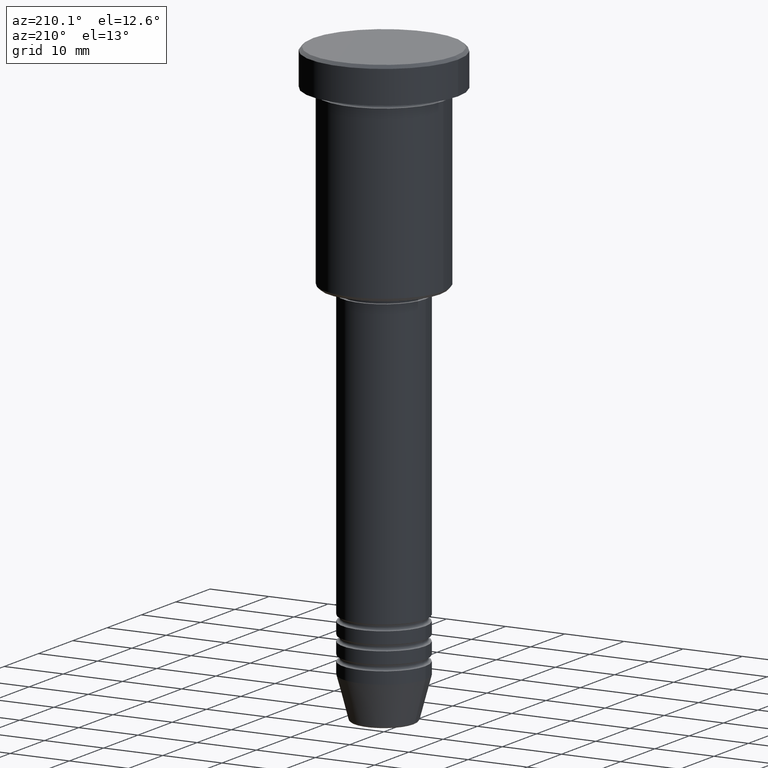
[diagram: clean part render]
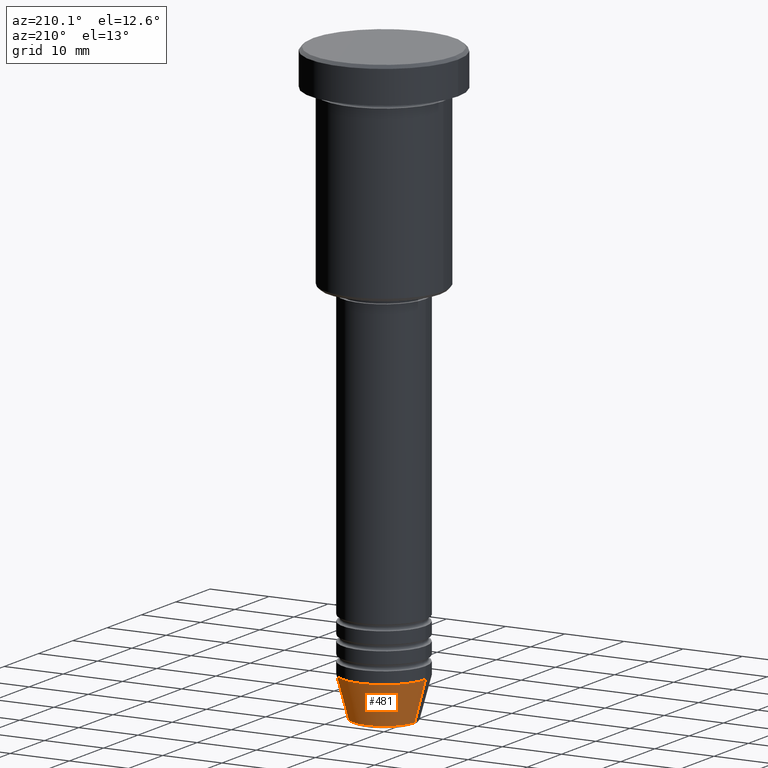
[diagram: same view with one face highlighted and labeled with its STEP entity id]
A machine part, auxiliary view. The second image highlights one B-rep face of the part: STEP entity #481.
In plain terms, the highlighted conical surface has half-angle 15 deg.
Its self-contained STEP definition (entity closure, byte-faithful):
#22 = AXIS2_PLACEMENT_3D ( 'NONE', #1141, #1156, #1049 ) ;
#27 = EDGE_CURVE ( 'NONE', #940, #278, #965, .T. ) ;
#101 = DIRECTION ( 'NONE',  ( 1.000000000000000000, 0.000000000000000000, 0.000000000000000000 ) ) ;
#129 = EDGE_CURVE ( 'NONE', #1112, #328, #339, .T. ) ;
#178 = AXIS2_PLACEMENT_3D ( 'NONE', #277, #1005, #192 ) ;
#191 = DIRECTION ( 'NONE',  ( -0.000000000000000000, -0.000000000000000000, 1.000000000000000000 ) ) ;
#192 = DIRECTION ( 'NONE',  ( 1.000000000000000000, 0.000000000000000000, 0.000000000000000000 ) ) ;
#200 = CARTESIAN_POINT ( 'NONE',  ( 7.000000000000000000, 0.000000000000000000, -94.00000000000000000 ) ) ;
#277 = CARTESIAN_POINT ( 'NONE',  ( 0.000000000000000000, 0.000000000000000000, -100.6294095225512706 ) ) ;
#278 = VERTEX_POINT ( 'NONE', #200 ) ;
#304 = CARTESIAN_POINT ( 'NONE',  ( 5.223655072137187716, 0.000000000000000000, -100.6294095225512706 ) ) ;
#323 = VECTOR ( 'NONE', #357, 1000.000000000000000 ) ;
#328 = VERTEX_POINT ( 'NONE', #909 ) ;
#333 = ORIENTED_EDGE ( 'NONE', *, *, #129, .T. ) ;
#338 = EDGE_CURVE ( 'NONE', #940, #1112, #1029, .T. ) ;
#339 = LINE ( 'NONE', #1076, #323 ) ;
#340 = VECTOR ( 'NONE', #1044, 1000.000000000000000 ) ;
#343 = AXIS2_PLACEMENT_3D ( 'NONE', #470, #191, #101 ) ;
#357 = DIRECTION ( 'NONE',  ( -0.2588190451025214056, 3.169619151431772953E-17, 0.9659258262890680902 ) ) ;
#470 = CARTESIAN_POINT ( 'NONE',  ( 0.000000000000000000, 0.000000000000000000, -94.00000000000000000 ) ) ;
#481 = ADVANCED_FACE ( 'NONE', ( #769 ), #626, .T. ) ;
#496 = ORIENTED_EDGE ( 'NONE', *, *, #27, .F. ) ;
#598 = EDGE_LOOP ( 'NONE', ( #752, #333, #910, #496 ) ) ;
#626 = CONICAL_SURFACE ( 'NONE', #22, 7.000000000000000000, 0.2617993877991501295 ) ;
#676 = CARTESIAN_POINT ( 'NONE',  ( 7.000000000000000000, 0.000000000000000000, -94.00000000000000000 ) ) ;
#704 = CIRCLE ( 'NONE', #343, 7.000000000000000000 ) ;
#731 = EDGE_CURVE ( 'NONE', #278, #328, #704, .T. ) ;
#752 = ORIENTED_EDGE ( 'NONE', *, *, #338, .T. ) ;
#769 = FACE_OUTER_BOUND ( 'NONE', #598, .T. ) ;
#909 = CARTESIAN_POINT ( 'NONE',  ( -7.000000000000000000, 8.572527594031473190E-16, -94.00000000000000000 ) ) ;
#910 = ORIENTED_EDGE ( 'NONE', *, *, #731, .F. ) ;
#940 = VERTEX_POINT ( 'NONE', #304 ) ;
#965 = LINE ( 'NONE', #676, #340 ) ;
#1005 = DIRECTION ( 'NONE',  ( -0.000000000000000000, -0.000000000000000000, 1.000000000000000000 ) ) ;
#1029 = CIRCLE ( 'NONE', #178, 5.223655072137187716 ) ;
#1044 = DIRECTION ( 'NONE',  ( 0.2588190451025214056, 0.000000000000000000, 0.9659258262890680902 ) ) ;
#1049 = DIRECTION ( 'NONE',  ( 1.000000000000000000, 0.000000000000000000, 0.000000000000000000 ) ) ;
#1076 = CARTESIAN_POINT ( 'NONE',  ( -7.000000000000000000, 8.572527594031473190E-16, -94.00000000000000000 ) ) ;
#1092 = CARTESIAN_POINT ( 'NONE',  ( -5.223655072137187716, 7.484830028987059188E-16, -100.6294095225512706 ) ) ;
#1112 = VERTEX_POINT ( 'NONE', #1092 ) ;
#1141 = CARTESIAN_POINT ( 'NONE',  ( 0.000000000000000000, 0.000000000000000000, -94.00000000000000000 ) ) ;
#1156 = DIRECTION ( 'NONE',  ( -0.000000000000000000, -0.000000000000000000, 1.000000000000000000 ) ) ;